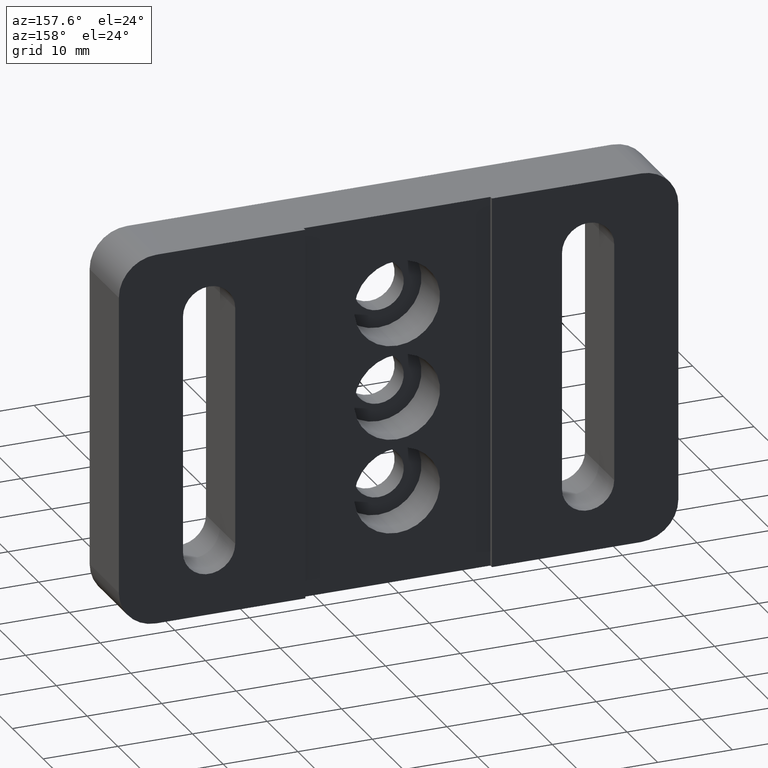
[diagram: clean part render]
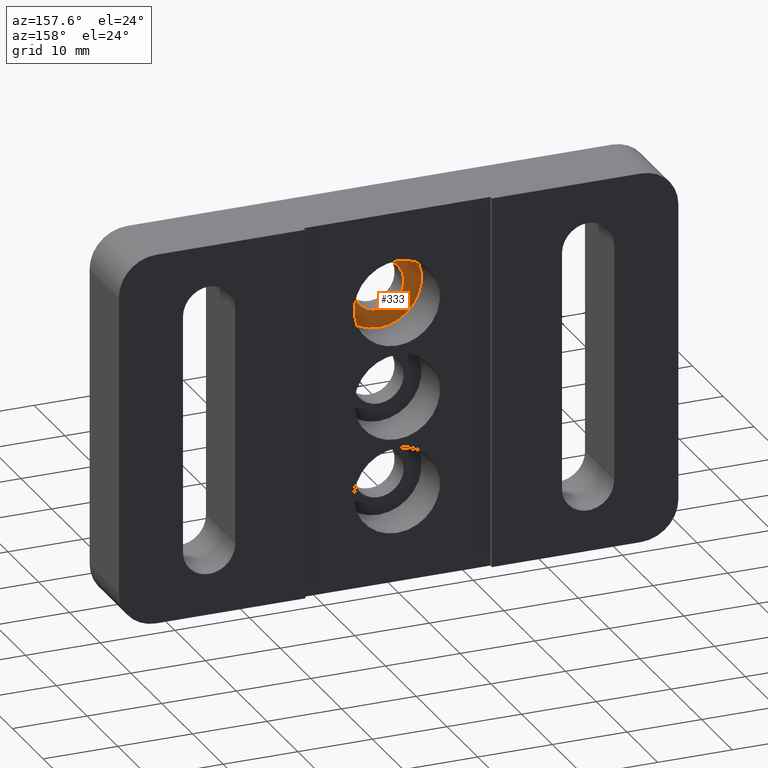
[diagram: same view with one face highlighted and labeled with its STEP entity id]
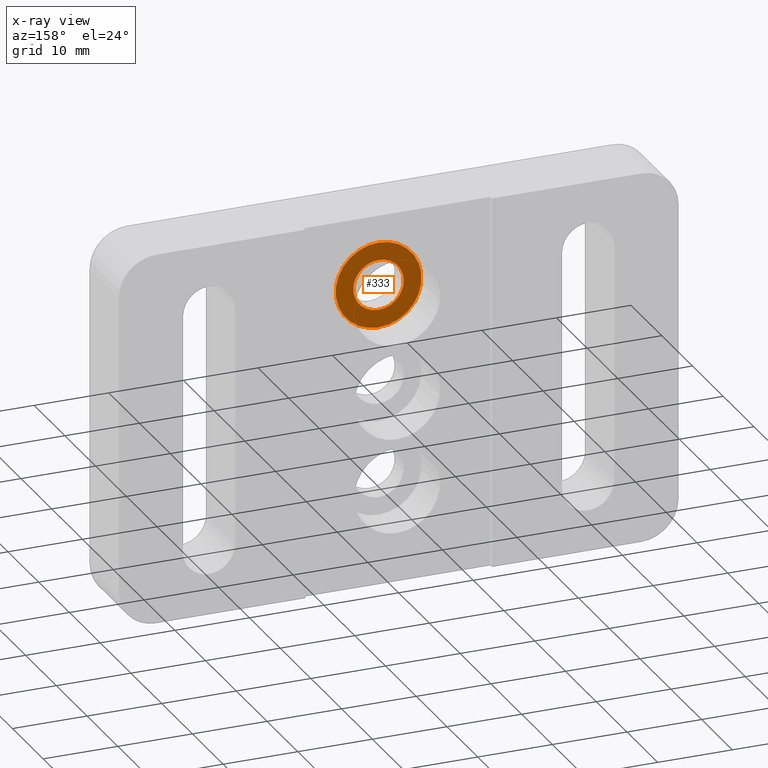
[diagram: x-ray of the same camera — body ghosted, the highlighted face saturated]
A machine part, auxiliary view. The second image highlights one B-rep face of the part: STEP entity #333.
The next image is the same camera in x-ray: the body ghosted, the highlighted face saturated — about 0% of this face is hidden behind the body in this view.
In plain terms, the highlighted planar face has unit normal (0, -1, 0).
Its self-contained STEP definition (entity closure, byte-faithful):
#44 = DIRECTION ( 'NONE',  ( 0.0000000000000000000, -0.0000000000000000000, -1.000000000000000000 ) ) ;
#73 = EDGE_LOOP ( 'NONE', ( #481, #1003 ) ) ;
#118 = CIRCLE ( 'NONE', #1241, 3.378199999999997900 ) ;
#123 = DIRECTION ( 'NONE',  ( 0.0000000000000000000, 0.0000000000000000000, 1.000000000000000000 ) ) ;
#207 = ORIENTED_EDGE ( 'NONE', *, *, #302, .F. ) ;
#228 = ORIENTED_EDGE ( 'NONE', *, *, #573, .F. ) ;
#239 = PLANE ( 'NONE',  #964 ) ;
#257 = CARTESIAN_POINT ( 'NONE',  ( 3.378199999999999200, -6.519799999999999200, 12.69999999999999900 ) ) ;
#271 = FACE_BOUND ( 'NONE', #556, .T. ) ;
#288 = DIRECTION ( 'NONE',  ( 0.0000000000000000000, 0.0000000000000000000, 1.000000000000000000 ) ) ;
#294 = AXIS2_PLACEMENT_3D ( 'NONE', #497, #781, #288 ) ;
#302 = EDGE_CURVE ( 'NONE', #718, #1270, #118, .T. ) ;
#333 = ADVANCED_FACE ( 'NONE', ( #271, #741 ), #239, .F. ) ;
#453 = DIRECTION ( 'NONE',  ( -0.0000000000000000000, 1.000000000000000000, -0.0000000000000000000 ) ) ;
#467 = CIRCLE ( 'NONE', #1216, 3.378199999999997900 ) ;
#469 = DIRECTION ( 'NONE',  ( 0.0000000000000000000, 0.0000000000000000000, 1.000000000000000000 ) ) ;
#481 = ORIENTED_EDGE ( 'NONE', *, *, #822, .T. ) ;
#497 = CARTESIAN_POINT ( 'NONE',  ( 0.0000000000000000000, -6.519799999999999200, 12.69999999999999900 ) ) ;
#556 = EDGE_LOOP ( 'NONE', ( #207, #228 ) ) ;
#559 = DIRECTION ( 'NONE',  ( -0.0000000000000000000, 1.000000000000000000, -0.0000000000000000000 ) ) ;
#560 = EDGE_CURVE ( 'NONE', #1110, #773, #1085, .T. ) ;
#573 = EDGE_CURVE ( 'NONE', #1270, #718, #467, .T. ) ;
#616 = CARTESIAN_POINT ( 'NONE',  ( 4.137101816879589000E-016, -6.519799999999999200, 9.321799999999999600 ) ) ;
#617 = CIRCLE ( 'NONE', #294, 5.754369999999998000 ) ;
#654 = DIRECTION ( 'NONE',  ( -0.0000000000000000000, 1.000000000000000000, -0.0000000000000000000 ) ) ;
#718 = VERTEX_POINT ( 'NONE', #1265 ) ;
#741 = FACE_OUTER_BOUND ( 'NONE', #73, .T. ) ;
#750 = CARTESIAN_POINT ( 'NONE',  ( 0.0000000000000000000, -6.519799999999999200, 12.69999999999999900 ) ) ;
#773 = VERTEX_POINT ( 'NONE', #776 ) ;
#776 = CARTESIAN_POINT ( 'NONE',  ( 0.0000000000000000000, -6.519799999999999200, 18.45436999999999700 ) ) ;
#781 = DIRECTION ( 'NONE',  ( -0.0000000000000000000, 1.000000000000000000, -0.0000000000000000000 ) ) ;
#822 = EDGE_CURVE ( 'NONE', #773, #1110, #617, .T. ) ;
#935 = CARTESIAN_POINT ( 'NONE',  ( 0.0000000000000000000, -6.519799999999999200, 12.69999999999999900 ) ) ;
#946 = DIRECTION ( 'NONE',  ( 0.0000000000000000000, 0.0000000000000000000, 1.000000000000000000 ) ) ;
#964 = AXIS2_PLACEMENT_3D ( 'NONE', #257, #1131, #44 ) ;
#1003 = ORIENTED_EDGE ( 'NONE', *, *, #560, .T. ) ;
#1085 = CIRCLE ( 'NONE', #1250, 5.754369999999998000 ) ;
#1110 = VERTEX_POINT ( 'NONE', #1155 ) ;
#1131 = DIRECTION ( 'NONE',  ( 0.0000000000000000000, -1.000000000000000000, 0.0000000000000000000 ) ) ;
#1155 = CARTESIAN_POINT ( 'NONE',  ( 7.047070801609553300E-016, -6.519799999999999200, 6.945630000000000400 ) ) ;
#1216 = AXIS2_PLACEMENT_3D ( 'NONE', #935, #654, #123 ) ;
#1241 = AXIS2_PLACEMENT_3D ( 'NONE', #1261, #559, #469 ) ;
#1250 = AXIS2_PLACEMENT_3D ( 'NONE', #750, #453, #946 ) ;
#1261 = CARTESIAN_POINT ( 'NONE',  ( 0.0000000000000000000, -6.519799999999999200, 12.69999999999999900 ) ) ;
#1265 = CARTESIAN_POINT ( 'NONE',  ( 0.0000000000000000000, -6.519799999999999200, 16.07819999999999900 ) ) ;
#1270 = VERTEX_POINT ( 'NONE', #616 ) ;